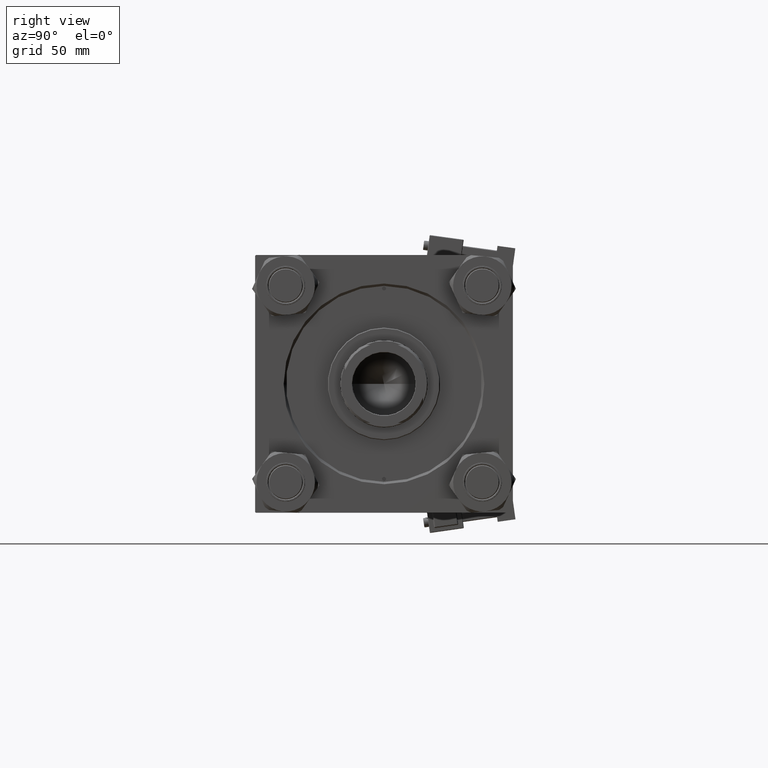
[diagram: clean part render]
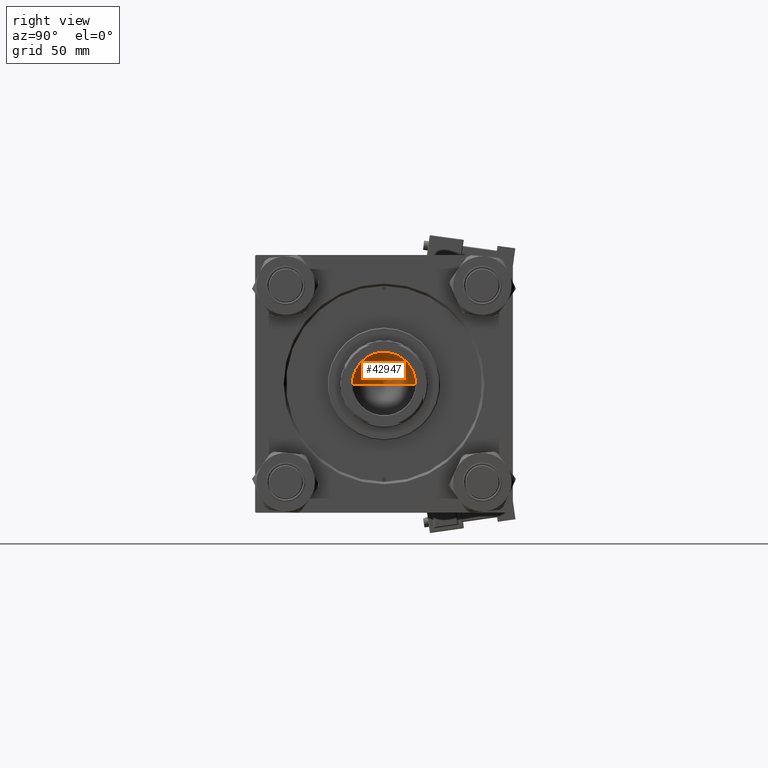
[diagram: same view with one face highlighted and labeled with its STEP entity id]
A machine part, right view. The second image highlights one B-rep face of the part: STEP entity #42947.
In plain terms, the highlighted conical surface has half-angle 59 deg.
Its self-contained STEP definition (entity closure, byte-faithful):
#2287 = EDGE_CURVE ( 'NONE', #10848, #27032, #29220, .T. ) ;
#3195 = VECTOR ( 'NONE', #29325, 1000.000000000000000 ) ;
#3720 = CONICAL_SURFACE ( 'NONE', #25844, 20.24999999999998934, 1.029744258676652313 ) ;
#4975 = CARTESIAN_POINT ( 'NONE',  ( 0.000000000000000000, 0.000000000000000000, 196.0000000000000000 ) ) ;
#5986 = CARTESIAN_POINT ( 'NONE',  ( -1.584115414415908206E-14, 0.000000000000000000, 183.8325724646918786 ) ) ;
#6018 = FACE_OUTER_BOUND ( 'NONE', #28746, .T. ) ;
#9583 = VECTOR ( 'NONE', #28962, 1000.000000000000000 ) ;
#10848 = VERTEX_POINT ( 'NONE', #5986 ) ;
#14505 = DIRECTION ( 'NONE',  ( 1.000000000000000000, 0.000000000000000000, 0.000000000000000000 ) ) ;
#14951 = VERTEX_POINT ( 'NONE', #52132 ) ;
#22850 = AXIS2_PLACEMENT_3D ( 'NONE', #31274, #35536, #14505 ) ;
#24183 = EDGE_CURVE ( 'NONE', #27032, #14951, #25403, .T. ) ;
#25090 = ORIENTED_EDGE ( 'NONE', *, *, #25621, .F. ) ;
#25403 = CIRCLE ( 'NONE', #22850, 20.24999999999998934 ) ;
#25479 = DIRECTION ( 'NONE',  ( 1.000000000000000000, 0.000000000000000000, 0.000000000000000000 ) ) ;
#25621 = EDGE_CURVE ( 'NONE', #10848, #14951, #26110, .T. ) ;
#25844 = AXIS2_PLACEMENT_3D ( 'NONE', #4975, #25999, #25479 ) ;
#25999 = DIRECTION ( 'NONE',  ( -0.000000000000000000, -0.000000000000000000, 1.000000000000000000 ) ) ;
#26110 = LINE ( 'NONE', #41826, #3195 ) ;
#27032 = VERTEX_POINT ( 'NONE', #28991 ) ;
#28746 = EDGE_LOOP ( 'NONE', ( #25090, #48279, #29919 ) ) ;
#28962 = DIRECTION ( 'NONE',  ( -0.8571673007021112234, 1.049727191138617340E-16, 0.5150380749100560429 ) ) ;
#28991 = CARTESIAN_POINT ( 'NONE',  ( -20.24999999999998934, 2.479909768273389117E-15, 196.0000000000000000 ) ) ;
#29220 = LINE ( 'NONE', #44673, #9583 ) ;
#29325 = DIRECTION ( 'NONE',  ( 0.8571673007021112234, 0.000000000000000000, 0.5150380749100560429 ) ) ;
#29919 = ORIENTED_EDGE ( 'NONE', *, *, #24183, .T. ) ;
#31274 = CARTESIAN_POINT ( 'NONE',  ( 0.000000000000000000, 0.000000000000000000, 196.0000000000000000 ) ) ;
#35536 = DIRECTION ( 'NONE',  ( -0.000000000000000000, -0.000000000000000000, 1.000000000000000000 ) ) ;
#41826 = CARTESIAN_POINT ( 'NONE',  ( 20.24999999999998934, 0.000000000000000000, 196.0000000000000000 ) ) ;
#42947 = ADVANCED_FACE ( 'NONE', ( #6018 ), #3720, .F. ) ;
#44673 = CARTESIAN_POINT ( 'NONE',  ( -20.24999999999998934, 2.479909768273389117E-15, 196.0000000000000000 ) ) ;
#48279 = ORIENTED_EDGE ( 'NONE', *, *, #2287, .T. ) ;
#52132 = CARTESIAN_POINT ( 'NONE',  ( 20.24999999999998934, 0.000000000000000000, 196.0000000000000000 ) ) ;